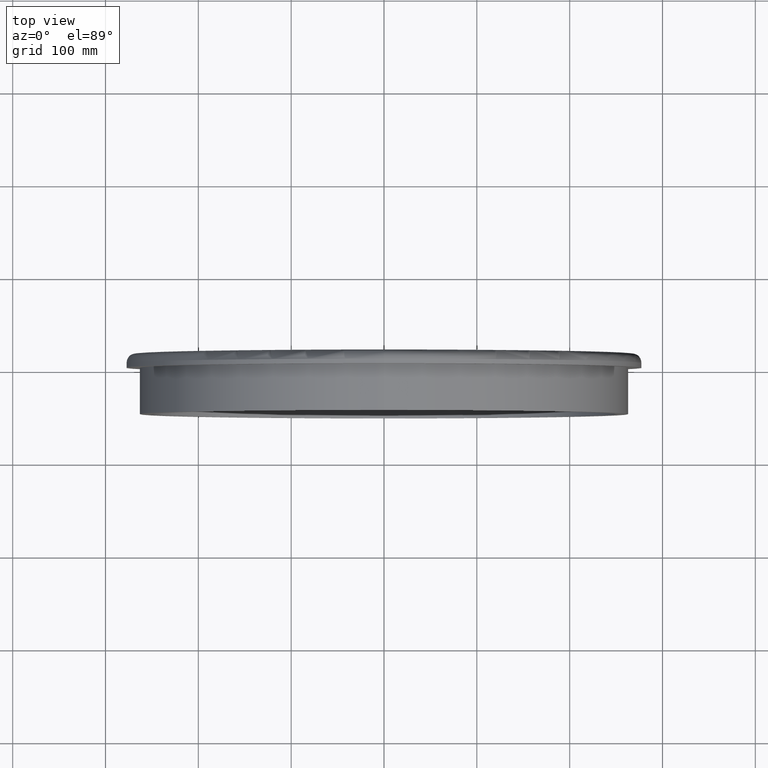
[diagram: clean part render]
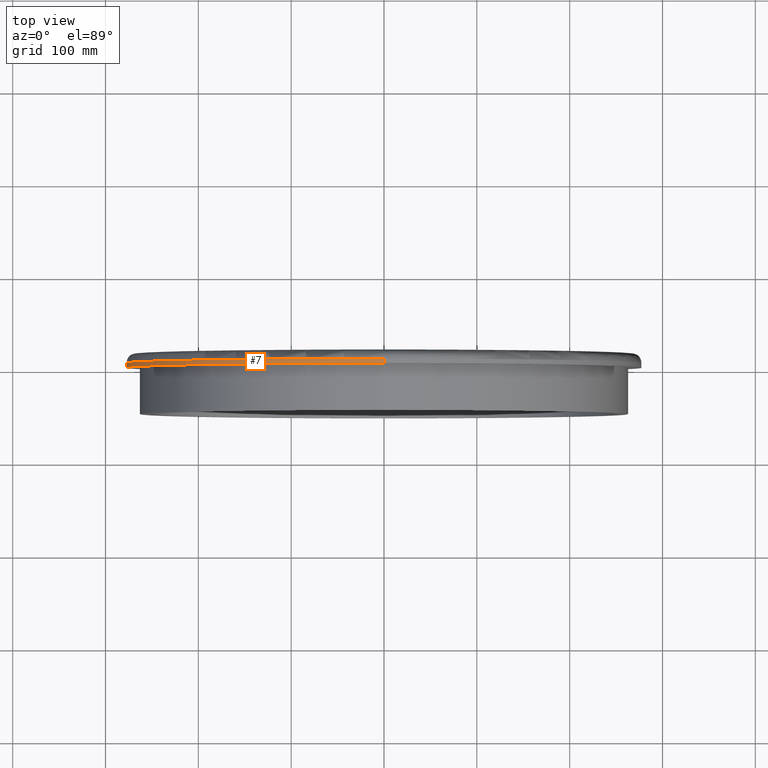
[diagram: same view with one face highlighted and labeled with its STEP entity id]
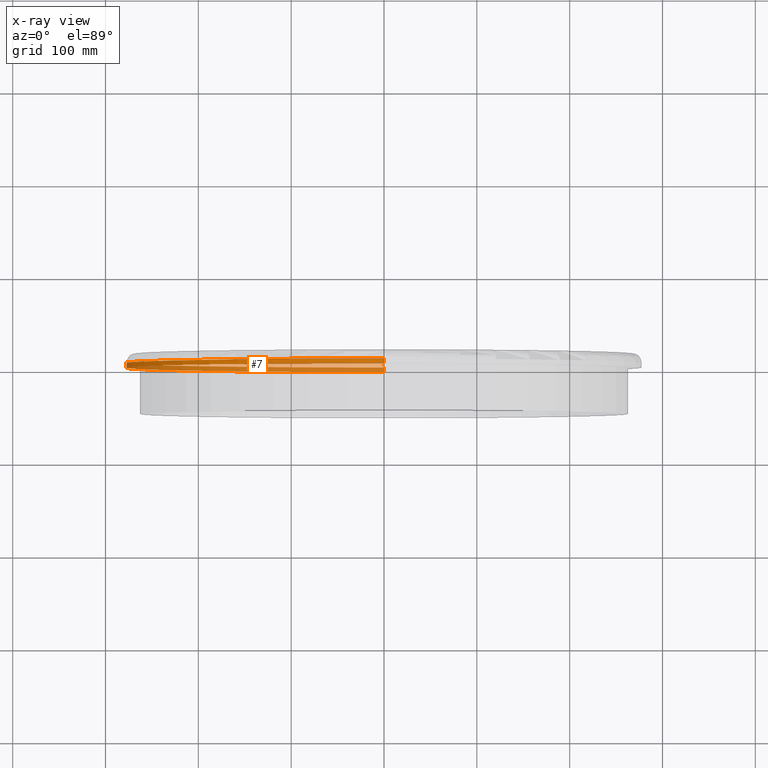
[diagram: x-ray of the same camera — body ghosted, the highlighted face saturated]
A machine part, top view. The second image highlights one B-rep face of the part: STEP entity #7.
The next image is the same camera in x-ray: the body ghosted, the highlighted face saturated — about 48% of this face is hidden behind the body in this view.
In plain terms, the highlighted cylindrical surface (partial cylindrical patch) has radius 278 mm, axis along (-0, -1, -0).
Its self-contained STEP definition (entity closure, byte-faithful):
#3 = ORIENTED_EDGE ( 'NONE', *, *, #336, .F. ) ;
#7 = ADVANCED_FACE ( 'NONE', ( #234 ), #413, .T. ) ;
#15 = ORIENTED_EDGE ( 'NONE', *, *, #448, .T. ) ;
#22 = CARTESIAN_POINT ( 'NONE',  ( 3.404518101629642167E-14, 4.999999999999999112, 278.0000000000000000 ) ) ;
#56 = CARTESIAN_POINT ( 'NONE',  ( 0.0000000000000000000, 0.0000000000000000000, 0.0000000000000000000 ) ) ;
#64 = DIRECTION ( 'NONE',  ( -0.0000000000000000000, -1.000000000000000000, -0.0000000000000000000 ) ) ;
#66 = DIRECTION ( 'NONE',  ( -0.0000000000000000000, -1.000000000000000000, -0.0000000000000000000 ) ) ;
#89 = VERTEX_POINT ( 'NONE', #91 ) ;
#91 = CARTESIAN_POINT ( 'NONE',  ( 0.0000000000000000000, 4.999999999999999112, -278.0000000000000000 ) ) ;
#96 = LINE ( 'NONE', #243, #109 ) ;
#104 = CARTESIAN_POINT ( 'NONE',  ( 3.404518101629642167E-14, 15.00000000000000000, 278.0000000000000000 ) ) ;
#109 = VECTOR ( 'NONE', #66, 1000.000000000000000 ) ;
#117 = EDGE_CURVE ( 'NONE', #405, #456, #150, .T. ) ;
#131 = DIRECTION ( 'NONE',  ( 0.0000000000000000000, 1.000000000000000000, 0.0000000000000000000 ) ) ;
#144 = CARTESIAN_POINT ( 'NONE',  ( 0.0000000000000000000, 15.00000000000000000, 0.0000000000000000000 ) ) ;
#150 = CIRCLE ( 'NONE', #302, 278.0000000000000000 ) ;
#193 = EDGE_LOOP ( 'NONE', ( #3, #15, #455, #229 ) ) ;
#198 = VECTOR ( 'NONE', #288, 1000.000000000000000 ) ;
#229 = ORIENTED_EDGE ( 'NONE', *, *, #117, .T. ) ;
#231 = DIRECTION ( 'NONE',  ( 0.0000000000000000000, 0.0000000000000000000, 1.000000000000000000 ) ) ;
#234 = FACE_OUTER_BOUND ( 'NONE', #193, .T. ) ;
#238 = CIRCLE ( 'NONE', #395, 278.0000000000000000 ) ;
#243 = CARTESIAN_POINT ( 'NONE',  ( 0.0000000000000000000, 15.00000000000000000, -278.0000000000000000 ) ) ;
#269 = DIRECTION ( 'NONE',  ( 0.0000000000000000000, 0.0000000000000000000, -1.000000000000000000 ) ) ;
#288 = DIRECTION ( 'NONE',  ( -0.0000000000000000000, -1.000000000000000000, -0.0000000000000000000 ) ) ;
#302 = AXIS2_PLACEMENT_3D ( 'NONE', #56, #131, #231 ) ;
#313 = VERTEX_POINT ( 'NONE', #22 ) ;
#336 = EDGE_CURVE ( 'NONE', #313, #456, #497, .T. ) ;
#365 = EDGE_CURVE ( 'NONE', #89, #405, #96, .T. ) ;
#395 = AXIS2_PLACEMENT_3D ( 'NONE', #530, #64, #409 ) ;
#397 = DIRECTION ( 'NONE',  ( -0.0000000000000000000, -1.000000000000000000, -0.0000000000000000000 ) ) ;
#405 = VERTEX_POINT ( 'NONE', #454 ) ;
#409 = DIRECTION ( 'NONE',  ( 0.0000000000000000000, 0.0000000000000000000, 1.000000000000000000 ) ) ;
#413 = CYLINDRICAL_SURFACE ( 'NONE', #467, 278.0000000000000000 ) ;
#448 = EDGE_CURVE ( 'NONE', #313, #89, #238, .T. ) ;
#454 = CARTESIAN_POINT ( 'NONE',  ( 0.0000000000000000000, 0.0000000000000000000, -278.0000000000000000 ) ) ;
#455 = ORIENTED_EDGE ( 'NONE', *, *, #365, .T. ) ;
#456 = VERTEX_POINT ( 'NONE', #518 ) ;
#467 = AXIS2_PLACEMENT_3D ( 'NONE', #144, #397, #269 ) ;
#497 = LINE ( 'NONE', #104, #198 ) ;
#518 = CARTESIAN_POINT ( 'NONE',  ( 3.404518101629642167E-14, 0.0000000000000000000, 278.0000000000000000 ) ) ;
#530 = CARTESIAN_POINT ( 'NONE',  ( 0.0000000000000000000, 4.999999999999999112, 0.0000000000000000000 ) ) ;